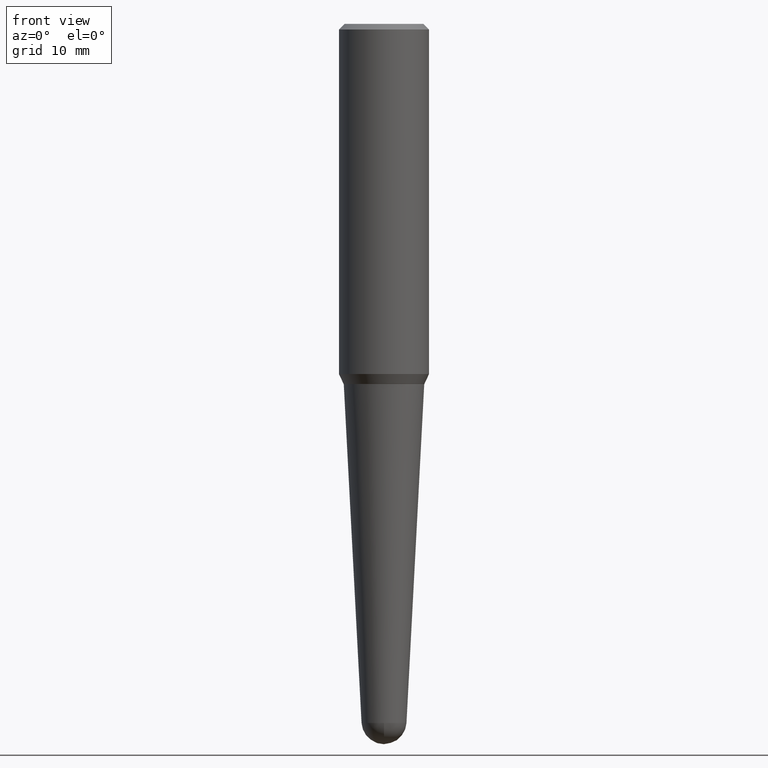
[diagram: clean part render]
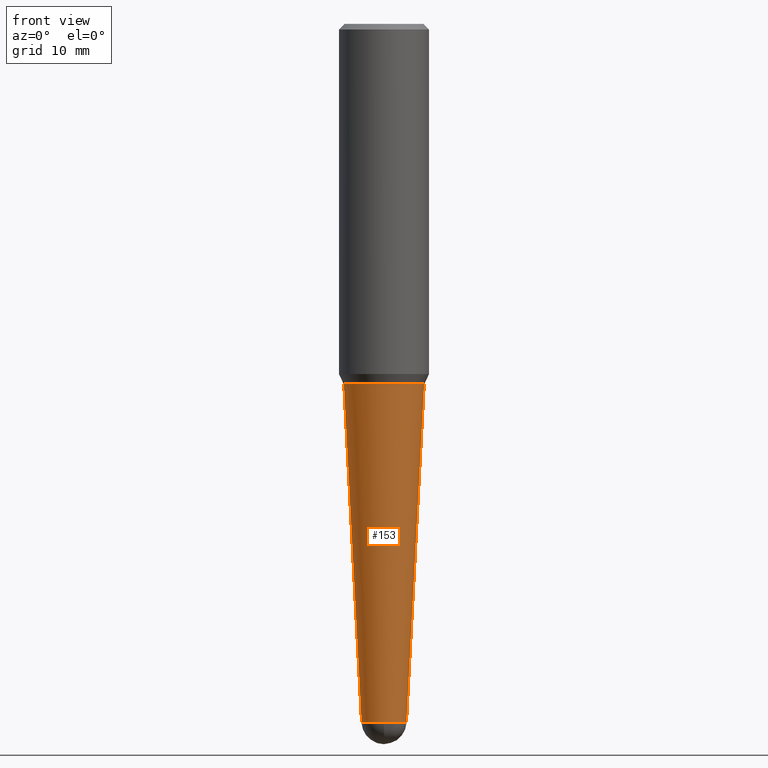
[diagram: same view with one face highlighted and labeled with its STEP entity id]
A machine part, front view. The second image highlights one B-rep face of the part: STEP entity #153.
In plain terms, the highlighted conical surface has half-angle 3 deg.
Its self-contained STEP definition (entity closure, byte-faithful):
#3 = CARTESIAN_POINT ( 'NONE',  ( -8.869612020440932231E-16, -0.1248286918443352322, -3.881541994530367301 ) ) ;
#5 = VERTEX_POINT ( 'NONE', #440 ) ;
#11 = AXIS2_PLACEMENT_3D ( 'NONE', #27, #342, #416 ) ;
#13 = CARTESIAN_POINT ( 'NONE',  ( 9.492189867521652556E-29, -1.355233143983878169E-14, -3.881541994530368189 ) ) ;
#19 = EDGE_CURVE ( 'NONE', #383, #5, #138, .T. ) ;
#27 = CARTESIAN_POINT ( 'NONE',  ( 4.890937612370273194E-29, -6.982962677686291165E-15, -2.000000000000000000 ) ) ;
#32 = EDGE_CURVE ( 'NONE', #5, #92, #91, .T. ) ;
#50 = EDGE_LOOP ( 'NONE', ( #398, #292, #308, #129, #208 ) ) ;
#83 = EDGE_CURVE ( 'NONE', #251, #333, #334, .T. ) ;
#91 = LINE ( 'NONE', #95, #380 ) ;
#92 = VERTEX_POINT ( 'NONE', #168 ) ;
#95 = CARTESIAN_POINT ( 'NONE',  ( 0.1248286918443221316, -1.442400553609208551E-14, -3.881541994530368189 ) ) ;
#113 = DIRECTION ( 'NONE',  ( -2.445468806185136597E-29, 3.491481338843145583E-15, 1.000000000000000000 ) ) ;
#120 = AXIS2_PLACEMENT_3D ( 'NONE', #259, #132, #228 ) ;
#129 = ORIENTED_EDGE ( 'NONE', *, *, #32, .T. ) ;
#132 = DIRECTION ( 'NONE',  ( -2.445468806185136597E-29, 3.491481338843145583E-15, 1.000000000000000000 ) ) ;
#138 = CIRCLE ( 'NONE', #215, 0.1248286918443221316 ) ;
#150 = DIRECTION ( 'NONE',  ( 1.000000000000000000, -6.982962677686269866E-15, 0.000000000000000000 ) ) ;
#153 = ADVANCED_FACE ( 'NONE', ( #445 ), #422, .T. ) ;
#168 = CARTESIAN_POINT ( 'NONE',  ( 0.2234361294054428293, -8.543208830171176949E-15, -2.000000000000000000 ) ) ;
#208 = ORIENTED_EDGE ( 'NONE', *, *, #277, .F. ) ;
#215 = AXIS2_PLACEMENT_3D ( 'NONE', #229, #409, #403 ) ;
#228 = DIRECTION ( 'NONE',  ( 1.000000000000000000, -6.982962677686269866E-15, 0.000000000000000000 ) ) ;
#229 = CARTESIAN_POINT ( 'NONE',  ( 9.492189867521652556E-29, -1.355233143983878169E-14, -3.881541994530368189 ) ) ;
#251 = VERTEX_POINT ( 'NONE', #455 ) ;
#254 = DIRECTION ( 'NONE',  ( 0.05233595624294386239, 3.121236355867708811E-15, 0.9986295347545738332 ) ) ;
#257 = DIRECTION ( 'NONE',  ( -0.05233595624294386239, 3.858565720288030357E-15, 0.9986295347545738332 ) ) ;
#259 = CARTESIAN_POINT ( 'NONE',  ( 9.492189867521652556E-29, -1.355233143983878169E-14, -3.881541994530368189 ) ) ;
#260 = CIRCLE ( 'NONE', #329, 0.1248286918443221316 ) ;
#262 = CARTESIAN_POINT ( 'NONE',  ( -0.1248286918443221316, -1.266537023779459114E-14, -3.881541994530368189 ) ) ;
#264 = CARTESIAN_POINT ( 'NONE',  ( -0.2234361294054428293, -5.395353491132379618E-15, -2.000000000000000000 ) ) ;
#277 = EDGE_CURVE ( 'NONE', #333, #92, #350, .T. ) ;
#292 = ORIENTED_EDGE ( 'NONE', *, *, #407, .T. ) ;
#305 = VECTOR ( 'NONE', #257, 39.37007874015748854 ) ;
#308 = ORIENTED_EDGE ( 'NONE', *, *, #19, .T. ) ;
#329 = AXIS2_PLACEMENT_3D ( 'NONE', #13, #113, #150 ) ;
#333 = VERTEX_POINT ( 'NONE', #264 ) ;
#334 = LINE ( 'NONE', #262, #305 ) ;
#342 = DIRECTION ( 'NONE',  ( -2.445468806185136597E-29, 3.491481338843145583E-15, 1.000000000000000000 ) ) ;
#350 = CIRCLE ( 'NONE', #11, 0.2234361294054428293 ) ;
#380 = VECTOR ( 'NONE', #254, 39.37007874015748854 ) ;
#383 = VERTEX_POINT ( 'NONE', #3 ) ;
#398 = ORIENTED_EDGE ( 'NONE', *, *, #83, .F. ) ;
#403 = DIRECTION ( 'NONE',  ( 1.000000000000000000, -6.982962677686269866E-15, 0.000000000000000000 ) ) ;
#407 = EDGE_CURVE ( 'NONE', #251, #383, #260, .T. ) ;
#409 = DIRECTION ( 'NONE',  ( -2.445468806185136597E-29, 3.491481338843145583E-15, 1.000000000000000000 ) ) ;
#416 = DIRECTION ( 'NONE',  ( 1.000000000000000000, -6.982962677686265133E-15, 0.000000000000000000 ) ) ;
#422 = CONICAL_SURFACE ( 'NONE', #120, 0.1248286918443221316, 0.05235987755982991765 ) ;
#440 = CARTESIAN_POINT ( 'NONE',  ( 0.1248286918443221316, -1.148360718313163044E-14, -3.881541994530368189 ) ) ;
#445 = FACE_OUTER_BOUND ( 'NONE', #50, .T. ) ;
#455 = CARTESIAN_POINT ( 'NONE',  ( -0.1248286918443221316, -9.030361864463486955E-15, -3.881541994530368189 ) ) ;